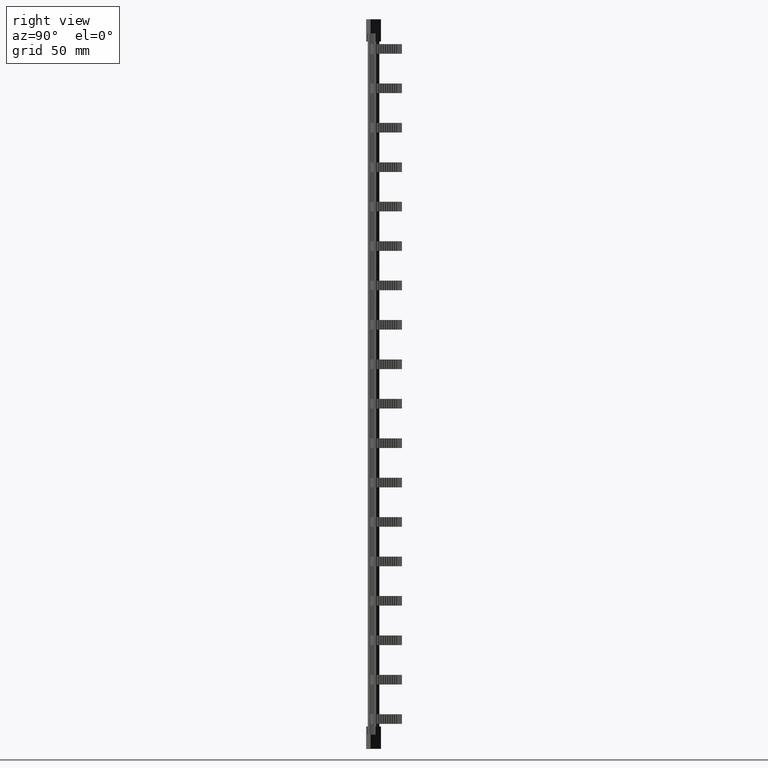
[diagram: clean part render]
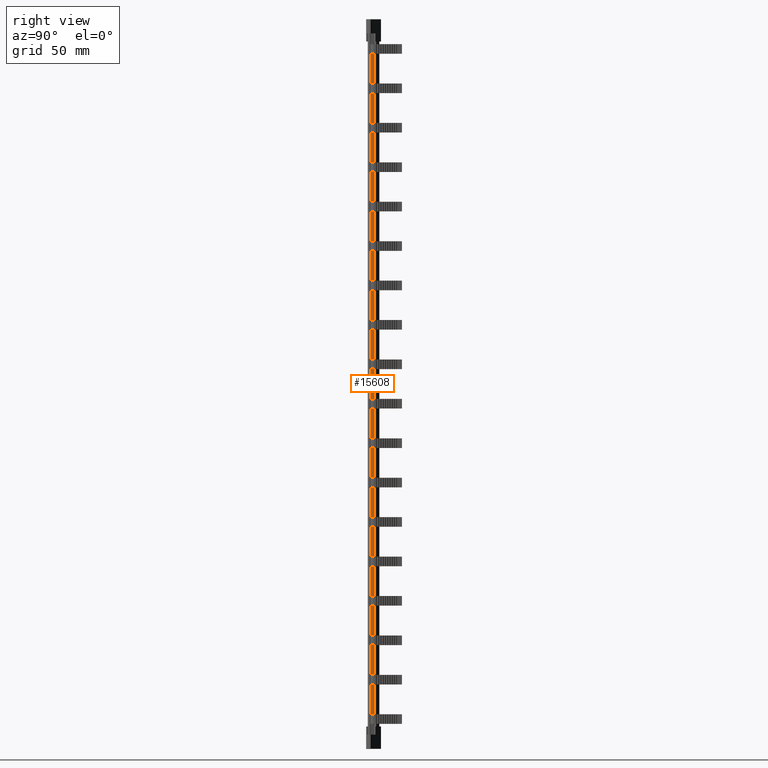
[diagram: same view with one face highlighted and labeled with its STEP entity id]
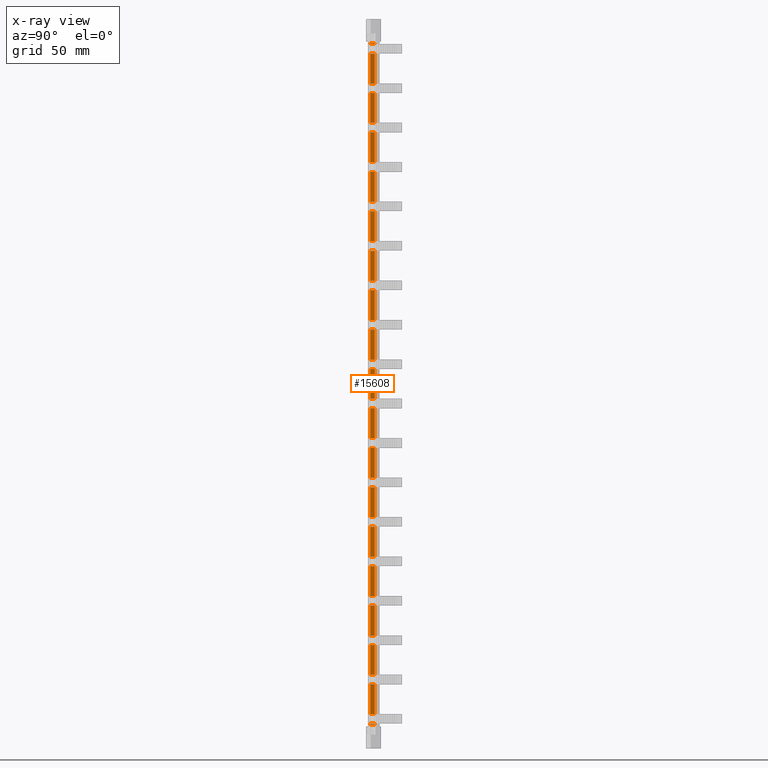
[diagram: x-ray of the same camera — body ghosted, the highlighted face saturated]
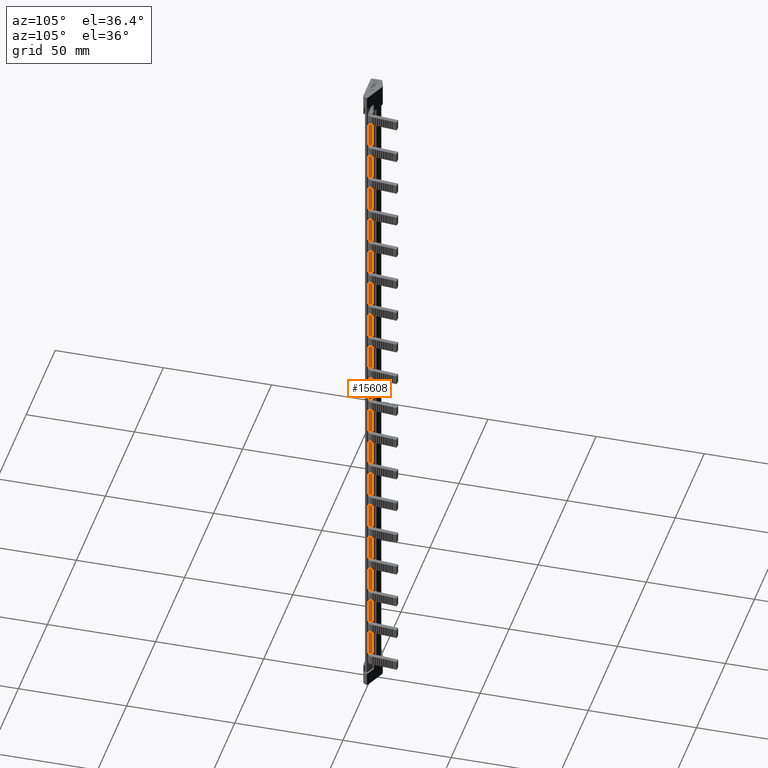
[diagram: same view with one face highlighted and labeled with its STEP entity id]
A machine part, right view. The second image highlights one B-rep face of the part: STEP entity #15608.
The next image is the same camera in x-ray: the body ghosted, the highlighted face saturated — about 0% of this face is hidden behind the body in this view.
A second angle (auxiliary view) of the same face is appended — the face is thin or edge-on in the first view.
In plain terms, the highlighted planar face has unit normal (-1, -0, 0).
Its self-contained STEP definition (entity closure, byte-faithful):
#67 = EDGE_CURVE ( 'NONE', #26734, #26753, #20892, .T. ) ;
#75 = EDGE_CURVE ( 'NONE', #26822, #26754, #20909, .T. ) ;
#78 = EDGE_CURVE ( 'NONE', #26643, #26561, #20969, .T. ) ;
#80 = EDGE_CURVE ( 'NONE', #26582, #26612, #20935, .T. ) ;
#83 = EDGE_CURVE ( 'NONE', #26652, #26707, #20945, .T. ) ;
#85 = EDGE_CURVE ( 'NONE', #26644, #26683, #20960, .T. ) ;
#90 = EDGE_CURVE ( 'NONE', #26607, #26608, #21036, .T. ) ;
#109 = EDGE_CURVE ( 'NONE', #26635, #26820, #21210, .T. ) ;
#117 = EDGE_CURVE ( 'NONE', #26641, #26600, #21331, .T. ) ;
#128 = EDGE_CURVE ( 'NONE', #26646, #26647, #21336, .T. ) ;
#319 = EDGE_CURVE ( 'NONE', #26607, #26613, #19483, .T. ) ;
#320 = EDGE_CURVE ( 'NONE', #26635, #26583, #19460, .T. ) ;
#324 = EDGE_CURVE ( 'NONE', #26583, #26651, #19476, .T. ) ;
#353 = EDGE_CURVE ( 'NONE', #26613, #26640, #19568, .T. ) ;
#365 = EDGE_CURVE ( 'NONE', #26624, #26628, #19628, .T. ) ;
#379 = EDGE_CURVE ( 'NONE', #26628, #26608, #19674, .T. ) ;
#386 = EDGE_CURVE ( 'NONE', #26640, #26600, #19645, .T. ) ;
#389 = EDGE_CURVE ( 'NONE', #26636, #26674, #19635, .T. ) ;
#392 = EDGE_CURVE ( 'NONE', #26693, #26708, #19695, .T. ) ;
#394 = EDGE_CURVE ( 'NONE', #26644, #26621, #19696, .T. ) ;
#395 = EDGE_CURVE ( 'NONE', #26619, #26668, #19719, .T. ) ;
#396 = EDGE_CURVE ( 'NONE', #26641, #26610, #19706, .T. ) ;
#418 = EDGE_CURVE ( 'NONE', #26582, #26624, #19753, .T. ) ;
#421 = EDGE_CURVE ( 'NONE', #26651, #26612, #19793, .T. ) ;
#428 = EDGE_CURVE ( 'NONE', #26653, #26699, #19804, .T. ) ;
#429 = EDGE_CURVE ( 'NONE', #26691, #26561, #19781, .T. ) ;
#430 = EDGE_CURVE ( 'NONE', #26643, #26673, #19777, .T. ) ;
#432 = EDGE_CURVE ( 'NONE', #26706, #26653, #19778, .T. ) ;
#433 = EDGE_CURVE ( 'NONE', #26681, #26647, #19771, .T. ) ;
#435 = EDGE_CURVE ( 'NONE', #26708, #26707, #19800, .T. ) ;
#436 = EDGE_CURVE ( 'NONE', #26673, #26681, #19820, .T. ) ;
#445 = EDGE_CURVE ( 'NONE', #26698, #26614, #19829, .T. ) ;
#446 = EDGE_CURVE ( 'NONE', #26697, #26671, #19855, .T. ) ;
#447 = EDGE_CURVE ( 'NONE', #26675, #26623, #19848, .T. ) ;
#449 = EDGE_CURVE ( 'NONE', #26645, #26619, #19819, .T. ) ;
#450 = EDGE_CURVE ( 'NONE', #26684, #26697, #19847, .T. ) ;
#454 = EDGE_CURVE ( 'NONE', #26646, #26693, #19899, .T. ) ;
#461 = EDGE_CURVE ( 'NONE', #26662, #26620, #19895, .T. ) ;
#463 = EDGE_CURVE ( 'NONE', #26678, #26742, #19861, .T. ) ;
#464 = EDGE_CURVE ( 'NONE', #26674, #26683, #19864, .T. ) ;
#475 = EDGE_CURVE ( 'NONE', #26705, #26679, #19940, .T. ) ;
#476 = EDGE_CURVE ( 'NONE', #26621, #26662, #19904, .T. ) ;
#479 = EDGE_CURVE ( 'NONE', #26685, #26597, #19905, .T. ) ;
#485 = EDGE_CURVE ( 'NONE', #26615, #26645, #19948, .T. ) ;
#487 = EDGE_CURVE ( 'NONE', #26652, #26636, #19956, .T. ) ;
#498 = EDGE_CURVE ( 'NONE', #26666, #26716, #20016, .T. ) ;
#500 = EDGE_CURVE ( 'NONE', #26629, #26666, #20026, .T. ) ;
#502 = EDGE_CURVE ( 'NONE', #26733, #26717, #20025, .T. ) ;
#505 = EDGE_CURVE ( 'NONE', #26610, #26691, #19994, .T. ) ;
#510 = EDGE_CURVE ( 'NONE', #26699, #26677, #4278, .T. ) ;
#516 = EDGE_CURVE ( 'NONE', #26614, #26711, #4263, .T. ) ;
#531 = EDGE_CURVE ( 'NONE', #26757, #26760, #4323, .T. ) ;
#534 = EDGE_CURVE ( 'NONE', #26735, #26669, #4284, .T. ) ;
#539 = EDGE_CURVE ( 'NONE', #26664, #26678, #4348, .T. ) ;
#541 = EDGE_CURVE ( 'NONE', #26623, #26685, #4339, .T. ) ;
#543 = EDGE_CURVE ( 'NONE', #26671, #26682, #4341, .T. ) ;
#545 = EDGE_CURVE ( 'NONE', #26763, #26757, #4357, .T. ) ;
#554 = EDGE_CURVE ( 'NONE', #26716, #26694, #3285, .T. ) ;
#562 = EDGE_CURVE ( 'NONE', #26724, #26763, #3353, .T. ) ;
#566 = EDGE_CURVE ( 'NONE', #26717, #26705, #3354, .T. ) ;
#569 = EDGE_CURVE ( 'NONE', #26639, #26698, #3370, .T. ) ;
#571 = EDGE_CURVE ( 'NONE', #26742, #26745, #3386, .T. ) ;
#575 = EDGE_CURVE ( 'NONE', #26669, #26663, #3401, .T. ) ;
#593 = EDGE_CURVE ( 'NONE', #26663, #26754, #3479, .T. ) ;
#637 = EDGE_CURVE ( 'NONE', #26735, #26760, #3653, .T. ) ;
#648 = EDGE_CURVE ( 'NONE', #26675, #26694, #3650, .T. ) ;
#651 = EDGE_CURVE ( 'NONE', #26615, #26620, #3638, .T. ) ;
#661 = EDGE_CURVE ( 'NONE', #26684, #26677, #3718, .T. ) ;
#668 = EDGE_CURVE ( 'NONE', #26706, #26668, #3746, .T. ) ;
#680 = EDGE_CURVE ( 'NONE', #26734, #26820, #3774, .T. ) ;
#681 = EDGE_CURVE ( 'NONE', #26822, #26753, #3769, .T. ) ;
#682 = EDGE_CURVE ( 'NONE', #26724, #26679, #3787, .T. ) ;
#683 = EDGE_CURVE ( 'NONE', #26664, #26711, #3804, .T. ) ;
#684 = EDGE_CURVE ( 'NONE', #26639, #26597, #3795, .T. ) ;
#686 = EDGE_CURVE ( 'NONE', #26629, #26682, #3846, .T. ) ;
#695 = EDGE_CURVE ( 'NONE', #26733, #26745, #3832, .T. ) ;
#1062 = VECTOR ( 'NONE', #3695, 1000.000000000000000 ) ;
#1075 = VECTOR ( 'NONE', #3699, 1000.000000000000000 ) ;
#1080 = VECTOR ( 'NONE', #3799, 1000.000000000000000 ) ;
#1102 = VECTOR ( 'NONE', #3791, 1000.000000000000000 ) ;
#1106 = VECTOR ( 'NONE', #3785, 1000.000000000000000 ) ;
#1107 = VECTOR ( 'NONE', #3755, 1000.000000000000000 ) ;
#1109 = VECTOR ( 'NONE', #3784, 1000.000000000000000 ) ;
#1110 = VECTOR ( 'NONE', #3747, 1000.000000000000000 ) ;
#1112 = VECTOR ( 'NONE', #3796, 1000.000000000000000 ) ;
#1115 = VECTOR ( 'NONE', #3828, 1000.000000000000000 ) ;
#1176 = VECTOR ( 'NONE', #20941, 1000.000000000000000 ) ;
#1177 = VECTOR ( 'NONE', #20973, 1000.000000000000000 ) ;
#1181 = VECTOR ( 'NONE', #20942, 1000.000000000000000 ) ;
#1193 = VECTOR ( 'NONE', #21078, 1000.000000000000000 ) ;
#1201 = VECTOR ( 'NONE', #20912, 1000.000000000000000 ) ;
#1203 = VECTOR ( 'NONE', #20936, 1000.000000000000000 ) ;
#1204 = VECTOR ( 'NONE', #21114, 1000.000000000000000 ) ;
#1229 = VECTOR ( 'NONE', #21219, 1000.000000000000000 ) ;
#1239 = VECTOR ( 'NONE', #21272, 1000.000000000000000 ) ;
#1255 = VECTOR ( 'NONE', #21354, 1000.000000000000000 ) ;
#1380 = VECTOR ( 'NONE', #3843, 1000.000000000000000 ) ;
#1442 = VECTOR ( 'NONE', #19461, 1000.000000000000000 ) ;
#1480 = VECTOR ( 'NONE', #19449, 1000.000000000000000 ) ;
#1483 = VECTOR ( 'NONE', #19488, 1000.000000000000000 ) ;
#1518 = VECTOR ( 'NONE', #19652, 1000.000000000000000 ) ;
#1534 = VECTOR ( 'NONE', #19680, 1000.000000000000000 ) ;
#1535 = VECTOR ( 'NONE', #19647, 1000.000000000000000 ) ;
#1536 = VECTOR ( 'NONE', #19714, 1000.000000000000000 ) ;
#1537 = VECTOR ( 'NONE', #19704, 1000.000000000000000 ) ;
#1541 = VECTOR ( 'NONE', #19684, 1000.000000000000000 ) ;
#1548 = VECTOR ( 'NONE', #19588, 1000.000000000000000 ) ;
#1555 = VECTOR ( 'NONE', #19545, 1000.000000000000000 ) ;
#1561 = VECTOR ( 'NONE', #19646, 1000.000000000000000 ) ;
#1572 = VECTOR ( 'NONE', #19794, 1000.000000000000000 ) ;
#1585 = VECTOR ( 'NONE', #19770, 1000.000000000000000 ) ;
#1587 = VECTOR ( 'NONE', #19853, 1000.000000000000000 ) ;
#1599 = VECTOR ( 'NONE', #19755, 1000.000000000000000 ) ;
#1602 = VECTOR ( 'NONE', #19828, 1000.000000000000000 ) ;
#1607 = VECTOR ( 'NONE', #19813, 1000.000000000000000 ) ;
#1612 = VECTOR ( 'NONE', #19787, 1000.000000000000000 ) ;
#1615 = VECTOR ( 'NONE', #19801, 1000.000000000000000 ) ;
#1618 = VECTOR ( 'NONE', #19810, 1000.000000000000000 ) ;
#1627 = VECTOR ( 'NONE', #19818, 1000.000000000000000 ) ;
#1630 = VECTOR ( 'NONE', #19935, 1000.000000000000000 ) ;
#1631 = VECTOR ( 'NONE', #19926, 1000.000000000000000 ) ;
#1633 = VECTOR ( 'NONE', #19842, 1000.000000000000000 ) ;
#1638 = VECTOR ( 'NONE', #19852, 1000.000000000000000 ) ;
#1645 = VECTOR ( 'NONE', #19833, 1000.000000000000000 ) ;
#1662 = VECTOR ( 'NONE', #19952, 1000.000000000000000 ) ;
#1668 = VECTOR ( 'NONE', #19896, 1000.000000000000000 ) ;
#1670 = VECTOR ( 'NONE', #19946, 1000.000000000000000 ) ;
#1671 = VECTOR ( 'NONE', #19980, 1000.000000000000000 ) ;
#1684 = VECTOR ( 'NONE', #19910, 1000.000000000000000 ) ;
#1686 = VECTOR ( 'NONE', #19890, 1000.000000000000000 ) ;
#1689 = VECTOR ( 'NONE', #19870, 1000.000000000000000 ) ;
#1691 = VECTOR ( 'NONE', #19884, 1000.000000000000000 ) ;
#1693 = VECTOR ( 'NONE', #19996, 1000.000000000000000 ) ;
#1704 = VECTOR ( 'NONE', #20027, 1000.000000000000000 ) ;
#1725 = VECTOR ( 'NONE', #4268, 1000.000000000000000 ) ;
#1726 = VECTOR ( 'NONE', #20005, 1000.000000000000000 ) ;
#1739 = VECTOR ( 'NONE', #4256, 1000.000000000000000 ) ;
#1744 = VECTOR ( 'NONE', #20022, 1000.000000000000000 ) ;
#1764 = VECTOR ( 'NONE', #4363, 1000.000000000000000 ) ;
#1773 = VECTOR ( 'NONE', #3408, 1000.000000000000000 ) ;
#1794 = VECTOR ( 'NONE', #4292, 1000.000000000000000 ) ;
#1796 = VECTOR ( 'NONE', #4360, 1000.000000000000000 ) ;
#1798 = VECTOR ( 'NONE', #4346, 1000.000000000000000 ) ;
#1801 = VECTOR ( 'NONE', #3358, 1000.000000000000000 ) ;
#1803 = VECTOR ( 'NONE', #3343, 1000.000000000000000 ) ;
#1804 = VECTOR ( 'NONE', #3400, 1000.000000000000000 ) ;
#1805 = VECTOR ( 'NONE', #3390, 1000.000000000000000 ) ;
#1807 = VECTOR ( 'NONE', #4310, 1000.000000000000000 ) ;
#1810 = VECTOR ( 'NONE', #4343, 1000.000000000000000 ) ;
#1811 = VECTOR ( 'NONE', #3295, 1000.000000000000000 ) ;
#1824 = VECTOR ( 'NONE', #3488, 1000.000000000000000 ) ;
#1861 = VECTOR ( 'NONE', #3619, 1000.000000000000000 ) ;
#3278 = CARTESIAN_POINT ( 'NONE',  ( 10.37430495582721900, 3.092390552839102500, 103.1500000000000200 ) ) ;
#3285 = LINE ( 'NONE', #3278, #1811 ) ;
#3295 = DIRECTION ( 'NONE',  ( 1.140583545597481100E-013, -1.000000000000000000, 0.0000000000000000000 ) ) ;
#3330 = CARTESIAN_POINT ( 'NONE',  ( 10.37430495582721900, 3.092390552839102500, 186.8499999999999900 ) ) ;
#3338 = CARTESIAN_POINT ( 'NONE',  ( 10.37430495582721900, 3.092390552839102500, -105.9240927571827100 ) ) ;
#3343 = DIRECTION ( 'NONE',  ( 0.0000000000000000000, 0.0000000000000000000, 1.000000000000000000 ) ) ;
#3353 = LINE ( 'NONE', #3330, #1801 ) ;
#3354 = LINE ( 'NONE', #3338, #1803 ) ;
#3358 = DIRECTION ( 'NONE',  ( -1.140583545597481100E-013, 1.000000000000000000, -0.0000000000000000000 ) ) ;
#3370 = LINE ( 'NONE', #3384, #1804 ) ;
#3377 = CARTESIAN_POINT ( 'NONE',  ( 10.37430495582721900, 3.092390552839102500, 155.9500000000000700 ) ) ;
#3383 = CARTESIAN_POINT ( 'NONE',  ( 10.37430495582721900, 3.092390552839102500, -105.9240927571827100 ) ) ;
#3384 = CARTESIAN_POINT ( 'NONE',  ( 10.37430495582721900, 3.092390552839102500, 134.0500000000000100 ) ) ;
#3386 = LINE ( 'NONE', #3377, #1805 ) ;
#3390 = DIRECTION ( 'NONE',  ( 1.140583545597481100E-013, -1.000000000000000000, 0.0000000000000000000 ) ) ;
#3400 = DIRECTION ( 'NONE',  ( -1.140583545597481100E-013, 1.000000000000000000, -0.0000000000000000000 ) ) ;
#3401 = LINE ( 'NONE', #3383, #1773 ) ;
#3408 = DIRECTION ( 'NONE',  ( 0.0000000000000000000, 0.0000000000000000000, 1.000000000000000000 ) ) ;
#3479 = LINE ( 'NONE', #3481, #1824 ) ;
#3481 = CARTESIAN_POINT ( 'NONE',  ( 10.37430495582721900, 3.092390552839102500, 208.7500000000000300 ) ) ;
#3488 = DIRECTION ( 'NONE',  ( 1.140583545597481100E-013, -1.000000000000000000, 0.0000000000000000000 ) ) ;
#3619 = DIRECTION ( 'NONE',  ( -0.0000000000000000000, -0.0000000000000000000, -1.000000000000000000 ) ) ;
#3638 = LINE ( 'NONE', #3705, #1075 ) ;
#3641 = CARTESIAN_POINT ( 'NONE',  ( 10.37430495582744600, 1.100000111734499500, -105.9240927571827100 ) ) ;
#3650 = LINE ( 'NONE', #3672, #1062 ) ;
#3653 = LINE ( 'NONE', #3641, #1861 ) ;
#3672 = CARTESIAN_POINT ( 'NONE',  ( 10.37430495582744600, 1.100000111734499500, -105.9240927571827100 ) ) ;
#3695 = DIRECTION ( 'NONE',  ( -0.0000000000000000000, -0.0000000000000000000, -1.000000000000000000 ) ) ;
#3699 = DIRECTION ( 'NONE',  ( -0.0000000000000000000, -0.0000000000000000000, -1.000000000000000000 ) ) ;
#3705 = CARTESIAN_POINT ( 'NONE',  ( 10.37430495582766800, 1.100000111734499500, -105.9240927571827100 ) ) ;
#3718 = LINE ( 'NONE', #3736, #1110 ) ;
#3736 = CARTESIAN_POINT ( 'NONE',  ( 10.37430495582766800, 1.100000111734499500, -105.9240927571827100 ) ) ;
#3746 = LINE ( 'NONE', #3754, #1107 ) ;
#3747 = DIRECTION ( 'NONE',  ( -0.0000000000000000000, -0.0000000000000000000, -1.000000000000000000 ) ) ;
#3754 = CARTESIAN_POINT ( 'NONE',  ( 10.37430495582766800, 1.100000111734499500, -105.9240927571827100 ) ) ;
#3755 = DIRECTION ( 'NONE',  ( -0.0000000000000000000, -0.0000000000000000000, -1.000000000000000000 ) ) ;
#3769 = LINE ( 'NONE', #3801, #1080 ) ;
#3770 = CARTESIAN_POINT ( 'NONE',  ( 10.37430495582744600, 1.100000111734499500, -105.9240927571827100 ) ) ;
#3774 = LINE ( 'NONE', #3782, #1109 ) ;
#3782 = CARTESIAN_POINT ( 'NONE',  ( 10.37430495582721900, 3.092390552839102500, -95.00000000000001400 ) ) ;
#3784 = DIRECTION ( 'NONE',  ( 1.140583545597481100E-013, -1.000000000000000000, 0.0000000000000000000 ) ) ;
#3785 = DIRECTION ( 'NONE',  ( -0.0000000000000000000, -0.0000000000000000000, -1.000000000000000000 ) ) ;
#3787 = LINE ( 'NONE', #3800, #1102 ) ;
#3791 = DIRECTION ( 'NONE',  ( -0.0000000000000000000, -0.0000000000000000000, -1.000000000000000000 ) ) ;
#3795 = LINE ( 'NONE', #3808, #1112 ) ;
#3796 = DIRECTION ( 'NONE',  ( -0.0000000000000000000, -0.0000000000000000000, -1.000000000000000000 ) ) ;
#3799 = DIRECTION ( 'NONE',  ( -1.140583545597481100E-013, 1.000000000000000000, -0.0000000000000000000 ) ) ;
#3800 = CARTESIAN_POINT ( 'NONE',  ( 10.37430495582744600, 1.100000111734499500, -105.9240927571827100 ) ) ;
#3801 = CARTESIAN_POINT ( 'NONE',  ( 10.37430495582721900, 3.092390552839102500, 209.0000000000000000 ) ) ;
#3804 = LINE ( 'NONE', #3770, #1106 ) ;
#3808 = CARTESIAN_POINT ( 'NONE',  ( 10.37430495582744600, 1.100000111734499500, -105.9240927571827100 ) ) ;
#3822 = CARTESIAN_POINT ( 'NONE',  ( 10.37430495582744600, 1.100000111734499500, -105.9240927571827100 ) ) ;
#3824 = CARTESIAN_POINT ( 'NONE',  ( 10.37430495582744600, 1.100000111734499500, -105.9240927571827100 ) ) ;
#3828 = DIRECTION ( 'NONE',  ( -0.0000000000000000000, -0.0000000000000000000, -1.000000000000000000 ) ) ;
#3832 = LINE ( 'NONE', #3824, #1380 ) ;
#3843 = DIRECTION ( 'NONE',  ( -0.0000000000000000000, -0.0000000000000000000, -1.000000000000000000 ) ) ;
#3846 = LINE ( 'NONE', #3822, #1115 ) ;
#4249 = CARTESIAN_POINT ( 'NONE',  ( 10.37430495582721900, 3.092390552839102500, 67.95000000000003100 ) ) ;
#4256 = DIRECTION ( 'NONE',  ( 1.140583545597481100E-013, -1.000000000000000000, 0.0000000000000000000 ) ) ;
#4263 = LINE ( 'NONE', #4274, #1725 ) ;
#4268 = DIRECTION ( 'NONE',  ( 1.140583545597481100E-013, -1.000000000000000000, 0.0000000000000000000 ) ) ;
#4274 = CARTESIAN_POINT ( 'NONE',  ( 10.37430495582721900, 3.092390552839102500, 138.3500000000000200 ) ) ;
#4278 = LINE ( 'NONE', #4249, #1739 ) ;
#4284 = LINE ( 'NONE', #4314, #1794 ) ;
#4292 = DIRECTION ( 'NONE',  ( -1.140583545597481100E-013, 1.000000000000000000, -0.0000000000000000000 ) ) ;
#4310 = DIRECTION ( 'NONE',  ( 1.140583545597481100E-013, -1.000000000000000000, 0.0000000000000000000 ) ) ;
#4314 = CARTESIAN_POINT ( 'NONE',  ( 10.37430495582721900, 3.092390552839102500, 204.4500000000000500 ) ) ;
#4323 = LINE ( 'NONE', #4324, #1807 ) ;
#4324 = CARTESIAN_POINT ( 'NONE',  ( 10.37430495582721900, 3.092390552839102500, 191.1500000000000100 ) ) ;
#4330 = CARTESIAN_POINT ( 'NONE',  ( 10.37430495582721900, 3.092390552839102500, -105.9240927571827100 ) ) ;
#4339 = LINE ( 'NONE', #4340, #1798 ) ;
#4340 = CARTESIAN_POINT ( 'NONE',  ( 10.37430495582721900, 3.092390552839102500, -105.9240927571827100 ) ) ;
#4341 = LINE ( 'NONE', #4366, #1796 ) ;
#4343 = DIRECTION ( 'NONE',  ( 0.0000000000000000000, 0.0000000000000000000, 1.000000000000000000 ) ) ;
#4346 = DIRECTION ( 'NONE',  ( 0.0000000000000000000, 0.0000000000000000000, 1.000000000000000000 ) ) ;
#4348 = LINE ( 'NONE', #4350, #1764 ) ;
#4350 = CARTESIAN_POINT ( 'NONE',  ( 10.37430495582721900, 3.092390552839102500, 151.6499999999999800 ) ) ;
#4357 = LINE ( 'NONE', #4330, #1810 ) ;
#4360 = DIRECTION ( 'NONE',  ( 1.140583545597481100E-013, -1.000000000000000000, 0.0000000000000000000 ) ) ;
#4363 = DIRECTION ( 'NONE',  ( -1.140583545597481100E-013, 1.000000000000000000, -0.0000000000000000000 ) ) ;
#4366 = CARTESIAN_POINT ( 'NONE',  ( 10.37430495582721900, 3.092390552839102500, 85.55000000000001100 ) ) ;
#6517 = CARTESIAN_POINT ( 'NONE',  ( 10.37430495582744400, 1.100000111734499500, -59.54999999999999000 ) ) ;
#6518 = CARTESIAN_POINT ( 'NONE',  ( 10.37430495582744400, 1.100000111734499500, -72.84999999999998000 ) ) ;
#6521 = CARTESIAN_POINT ( 'NONE',  ( 10.37430495582721900, 3.092390552839102500, -94.75000000000000000 ) ) ;
#6535 = CARTESIAN_POINT ( 'NONE',  ( 10.37430495582744400, 1.100000111734499500, -37.64999999999998400 ) ) ;
#6551 = CARTESIAN_POINT ( 'NONE',  ( 10.37430495582737000, 1.100000111734499500, 120.7499999999999900 ) ) ;
#6555 = CARTESIAN_POINT ( 'NONE',  ( 10.37430495582744400, 1.100000111734499500, -55.24999999999998600 ) ) ;
#6576 = CARTESIAN_POINT ( 'NONE',  ( 10.37430495582744400, 1.100000111734499500, -77.14999999999999100 ) ) ;
#6579 = CARTESIAN_POINT ( 'NONE',  ( 10.37430495582744400, 1.100000111734499500, -20.04999999999997900 ) ) ;
#6584 = CARTESIAN_POINT ( 'NONE',  ( 10.37430495582721900, 3.092390552839102500, 32.75000000000000000 ) ) ;
#6585 = CARTESIAN_POINT ( 'NONE',  ( 10.37430495582737000, 1.100000111734499500, 134.0500000000000100 ) ) ;
#6586 = CARTESIAN_POINT ( 'NONE',  ( 10.37430495582721900, 3.092390552839102500, 208.7500000000000600 ) ) ;
#6587 = CARTESIAN_POINT ( 'NONE',  ( 10.37430495582737000, 1.100000111734499500, 151.6499999999999800 ) ) ;
#6589 = CARTESIAN_POINT ( 'NONE',  ( 10.37430495582721900, 3.092390552839102500, 98.85000000000002300 ) ) ;
#6591 = CARTESIAN_POINT ( 'NONE',  ( 10.37430495582744400, 1.100000111734499500, -41.94999999999998900 ) ) ;
#6592 = CARTESIAN_POINT ( 'NONE',  ( 10.37430495582721900, 3.092390552839102500, -41.94999999999998900 ) ) ;
#6593 = CARTESIAN_POINT ( 'NONE',  ( 10.37430495582737000, 1.100000111734499500, 98.85000000000003700 ) ) ;
#6594 = CARTESIAN_POINT ( 'NONE',  ( 10.37430495582744400, 1.100000111734499500, -90.44999999999998900 ) ) ;
#6595 = CARTESIAN_POINT ( 'NONE',  ( 10.37430495582721900, 3.092390552839102500, -77.14999999999999100 ) ) ;
#6596 = CARTESIAN_POINT ( 'NONE',  ( 10.37430495582744400, 1.100000111734499500, 28.45000000000000300 ) ) ;
#6600 = CARTESIAN_POINT ( 'NONE',  ( 10.37430495582721900, 3.092390552839102500, -55.24999999999999300 ) ) ;
#6601 = CARTESIAN_POINT ( 'NONE',  ( 10.37430495582721900, 3.092390552839102500, 46.05000000000000400 ) ) ;
#6602 = CARTESIAN_POINT ( 'NONE',  ( 10.37430495582744400, 1.100000111734499500, 10.84999999999999800 ) ) ;
#6610 = CARTESIAN_POINT ( 'NONE',  ( 10.37430495582744400, 1.100000111734499500, 50.35000000000001600 ) ) ;
#6612 = CARTESIAN_POINT ( 'NONE',  ( 10.37430495582721900, 3.092390552839102500, 204.4500000000000200 ) ) ;
#6613 = CARTESIAN_POINT ( 'NONE',  ( 10.37430495582721900, 3.092390552839102500, 28.45000000000000300 ) ) ;
#6614 = CARTESIAN_POINT ( 'NONE',  ( 10.37430495582744400, 1.100000111734499500, -94.75000000000000000 ) ) ;
#6616 = CARTESIAN_POINT ( 'NONE',  ( 10.37430495582721900, 3.092390552839102500, 85.55000000000001100 ) ) ;
#6619 = CARTESIAN_POINT ( 'NONE',  ( 10.37430495582721900, 3.092390552839102500, -72.84999999999999400 ) ) ;
#6620 = CARTESIAN_POINT ( 'NONE',  ( 10.37430495582721900, 3.092390552839102500, 138.3500000000000200 ) ) ;
#6623 = CARTESIAN_POINT ( 'NONE',  ( 10.37430495582744400, 1.100000111734499500, -24.34999999999998400 ) ) ;
#6625 = CARTESIAN_POINT ( 'NONE',  ( 10.37430495582721900, 3.092390552839102500, 116.4500000000000300 ) ) ;
#6628 = CARTESIAN_POINT ( 'NONE',  ( 10.37430495582721900, 3.092390552839102500, 50.35000000000000900 ) ) ;
#6630 = CARTESIAN_POINT ( 'NONE',  ( 10.37430495582744400, 1.100000111734499500, 46.05000000000000400 ) ) ;
#6632 = CARTESIAN_POINT ( 'NONE',  ( 10.37430495582721900, 3.092390552839102500, -59.54999999999999000 ) ) ;
#6633 = CARTESIAN_POINT ( 'NONE',  ( 10.37430495582721900, 3.092390552839102500, 10.84999999999999800 ) ) ;
#6634 = CARTESIAN_POINT ( 'NONE',  ( 10.37430495582744400, 1.100000111734499500, 32.75000000000000700 ) ) ;
#6635 = CARTESIAN_POINT ( 'NONE',  ( 10.37430495582744400, 1.100000111734499500, -6.749999999999978700 ) ) ;
#6638 = CARTESIAN_POINT ( 'NONE',  ( 10.37430495582721900, 3.092390552839102500, -90.45000000000000300 ) ) ;
#6639 = CARTESIAN_POINT ( 'NONE',  ( 10.37430495582721900, 3.092390552839102500, 63.65000000000001300 ) ) ;
#6641 = CARTESIAN_POINT ( 'NONE',  ( 10.37430495582721900, 3.092390552839102500, 81.25000000000001400 ) ) ;
#6642 = CARTESIAN_POINT ( 'NONE',  ( 10.37430495582721700, 3.100000585347644200, -95.00000000000001400 ) ) ;
#6643 = CARTESIAN_POINT ( 'NONE',  ( 10.37430495582737000, 1.100000111734499500, 204.4500000000000200 ) ) ;
#6647 = CARTESIAN_POINT ( 'NONE',  ( 10.37430495582721900, 3.092390552839102500, 151.6500000000000100 ) ) ;
#6648 = CARTESIAN_POINT ( 'NONE',  ( 10.37430495582737000, 1.100000111734499500, 103.1500000000000200 ) ) ;
#6650 = CARTESIAN_POINT ( 'NONE',  ( 10.37430495582721900, 3.092390552839102500, 67.95000000000003100 ) ) ;
#6651 = CARTESIAN_POINT ( 'NONE',  ( 10.37430495582744400, 1.100000111734499500, 15.15000000000000200 ) ) ;
#6653 = CARTESIAN_POINT ( 'NONE',  ( 10.37430495582737000, 1.100000111734499500, 173.5500000000000100 ) ) ;
#6654 = CARTESIAN_POINT ( 'NONE',  ( 10.37430495582721900, 3.092390552839102500, -2.449999999999979700 ) ) ;
#6656 = CARTESIAN_POINT ( 'NONE',  ( 10.37430495582737000, 1.100000111734499500, 138.3500000000000200 ) ) ;
#6657 = CARTESIAN_POINT ( 'NONE',  ( 10.37430495582721900, 3.092390552839102500, 120.7500000000000000 ) ) ;
#6663 = CARTESIAN_POINT ( 'NONE',  ( 10.37430495582721900, 3.092390552839102500, 169.2500000000000000 ) ) ;
#6669 = CARTESIAN_POINT ( 'NONE',  ( 10.37430495582744400, 1.100000111734499500, 67.95000000000003100 ) ) ;
#6670 = CARTESIAN_POINT ( 'NONE',  ( 10.37430495582721900, 3.092390552839102500, -24.34999999999998400 ) ) ;
#6671 = CARTESIAN_POINT ( 'NONE',  ( 10.37430495582721900, 3.092390552839102500, -6.749999999999978700 ) ) ;
#6675 = CARTESIAN_POINT ( 'NONE',  ( 10.37430495582721900, 3.092390552839102500, 15.14999999999999700 ) ) ;
#6678 = CARTESIAN_POINT ( 'NONE',  ( 10.37430495582721900, 3.092390552839102500, 103.1500000000000200 ) ) ;
#6681 = CARTESIAN_POINT ( 'NONE',  ( 10.37430495582737000, 1.100000111734499500, 169.2500000000000000 ) ) ;
#6682 = CARTESIAN_POINT ( 'NONE',  ( 10.37430495582744400, 1.100000111734499500, -2.449999999999979700 ) ) ;
#6685 = CARTESIAN_POINT ( 'NONE',  ( 10.37430495582737000, 1.100000111734499500, 186.8499999999999900 ) ) ;
#6686 = CARTESIAN_POINT ( 'NONE',  ( 10.37430495582744400, 1.100000111734499500, 63.65000000000001300 ) ) ;
#6689 = CARTESIAN_POINT ( 'NONE',  ( 10.37430495582721900, 3.092390552839102500, -20.04999999999998300 ) ) ;
#6692 = CARTESIAN_POINT ( 'NONE',  ( 10.37430495582721900, 3.092390552839102500, 134.0500000000000100 ) ) ;
#6697 = CARTESIAN_POINT ( 'NONE',  ( 10.37430495582737000, 1.100000111734499500, 116.4500000000000200 ) ) ;
#6699 = CARTESIAN_POINT ( 'NONE',  ( 10.37430495582737000, 1.100000111734499500, 85.55000000000001100 ) ) ;
#6700 = CARTESIAN_POINT ( 'NONE',  ( 10.37430495582721900, 3.092390552839102500, -37.64999999999999100 ) ) ;
#6702 = CARTESIAN_POINT ( 'NONE',  ( 10.37430495582721900, 3.092390552839102500, 173.5500000000000100 ) ) ;
#6703 = CARTESIAN_POINT ( 'NONE',  ( 10.37430495582744400, 1.100000111734499500, 81.25000000000001400 ) ) ;
#6708 = CARTESIAN_POINT ( 'NONE',  ( 10.37430495582721900, 3.092390552839102500, 186.8500000000000200 ) ) ;
#6713 = CARTESIAN_POINT ( 'NONE',  ( 10.37430495582721900, 3.092390552839102500, 155.9500000000000700 ) ) ;
#6717 = CARTESIAN_POINT ( 'NONE',  ( 10.37430495582737000, 1.100000111734499500, 191.1500000000000100 ) ) ;
#6722 = CARTESIAN_POINT ( 'NONE',  ( 10.37430495582722900, 3.100000585347644200, 209.0000000000000000 ) ) ;
#6740 = CARTESIAN_POINT ( 'NONE',  ( 10.37430495582721900, 3.092390552839102500, 191.1500000000000100 ) ) ;
#6751 = CARTESIAN_POINT ( 'NONE',  ( 10.37430495582724700, 1.100000111734499500, 208.7500000000000300 ) ) ;
#6762 = CARTESIAN_POINT ( 'NONE',  ( 10.37430495582737000, 1.100000111734499500, 155.9500000000000700 ) ) ;
#6815 = CARTESIAN_POINT ( 'NONE',  ( 10.37430495582720100, 1.100000111734499500, 209.0000000000000000 ) ) ;
#6823 = CARTESIAN_POINT ( 'NONE',  ( 10.37430495582759300, 1.100000013578794000, -94.99999999999998600 ) ) ;
#7593 = ORIENTED_EDGE ( 'NONE', *, *, #695, .T. ) ;
#7595 = ORIENTED_EDGE ( 'NONE', *, *, #502, .F. ) ;
#7598 = ORIENTED_EDGE ( 'NONE', *, *, #571, .F. ) ;
#7599 = ORIENTED_EDGE ( 'NONE', *, *, #534, .F. ) ;
#7603 = ORIENTED_EDGE ( 'NONE', *, *, #545, .F. ) ;
#7607 = ORIENTED_EDGE ( 'NONE', *, *, #562, .F. ) ;
#7609 = ORIENTED_EDGE ( 'NONE', *, *, #637, .T. ) ;
#7614 = ORIENTED_EDGE ( 'NONE', *, *, #475, .F. ) ;
#7626 = ORIENTED_EDGE ( 'NONE', *, *, #575, .F. ) ;
#7636 = ORIENTED_EDGE ( 'NONE', *, *, #682, .T. ) ;
#7639 = ORIENTED_EDGE ( 'NONE', *, *, #531, .F. ) ;
#7648 = ORIENTED_EDGE ( 'NONE', *, *, #566, .F. ) ;
#8395 = ORIENTED_EDGE ( 'NONE', *, *, #668, .T. ) ;
#8411 = ORIENTED_EDGE ( 'NONE', *, *, #428, .F. ) ;
#8423 = ORIENTED_EDGE ( 'NONE', *, *, #510, .F. ) ;
#8424 = ORIENTED_EDGE ( 'NONE', *, *, #320, .F. ) ;
#8425 = ORIENTED_EDGE ( 'NONE', *, *, #487, .F. ) ;
#8426 = ORIENTED_EDGE ( 'NONE', *, *, #319, .F. ) ;
#8427 = ORIENTED_EDGE ( 'NONE', *, *, #67, .T. ) ;
#8428 = ORIENTED_EDGE ( 'NONE', *, *, #392, .F. ) ;
#8429 = ORIENTED_EDGE ( 'NONE', *, *, #83, .T. ) ;
#8430 = ORIENTED_EDGE ( 'NONE', *, *, #78, .T. ) ;
#8431 = ORIENTED_EDGE ( 'NONE', *, *, #395, .F. ) ;
#8432 = ORIENTED_EDGE ( 'NONE', *, *, #85, .T. ) ;
#8433 = ORIENTED_EDGE ( 'NONE', *, *, #543, .F. ) ;
#8434 = ORIENTED_EDGE ( 'NONE', *, *, #433, .F. ) ;
#8435 = ORIENTED_EDGE ( 'NONE', *, *, #128, .T. ) ;
#8436 = ORIENTED_EDGE ( 'NONE', *, *, #353, .F. ) ;
#8437 = ORIENTED_EDGE ( 'NONE', *, *, #90, .T. ) ;
#8438 = ORIENTED_EDGE ( 'NONE', *, *, #418, .F. ) ;
#8439 = ORIENTED_EDGE ( 'NONE', *, *, #686, .T. ) ;
#8440 = ORIENTED_EDGE ( 'NONE', *, *, #454, .F. ) ;
#8441 = ORIENTED_EDGE ( 'NONE', *, *, #396, .F. ) ;
#8443 = ORIENTED_EDGE ( 'NONE', *, *, #109, .T. ) ;
#8445 = ORIENTED_EDGE ( 'NONE', *, *, #435, .F. ) ;
#8446 = ORIENTED_EDGE ( 'NONE', *, *, #446, .F. ) ;
#8447 = ORIENTED_EDGE ( 'NONE', *, *, #117, .T. ) ;
#8448 = ORIENTED_EDGE ( 'NONE', *, *, #75, .T. ) ;
#8450 = ORIENTED_EDGE ( 'NONE', *, *, #651, .T. ) ;
#8451 = ORIENTED_EDGE ( 'NONE', *, *, #429, .F. ) ;
#8454 = ORIENTED_EDGE ( 'NONE', *, *, #432, .F. ) ;
#8456 = ORIENTED_EDGE ( 'NONE', *, *, #476, .F. ) ;
#8457 = ORIENTED_EDGE ( 'NONE', *, *, #365, .F. ) ;
#8458 = ORIENTED_EDGE ( 'NONE', *, *, #394, .F. ) ;
#8459 = ORIENTED_EDGE ( 'NONE', *, *, #430, .F. ) ;
#8460 = ORIENTED_EDGE ( 'NONE', *, *, #461, .F. ) ;
#8461 = ORIENTED_EDGE ( 'NONE', *, *, #485, .F. ) ;
#8462 = ORIENTED_EDGE ( 'NONE', *, *, #389, .F. ) ;
#8463 = ORIENTED_EDGE ( 'NONE', *, *, #421, .F. ) ;
#8464 = ORIENTED_EDGE ( 'NONE', *, *, #379, .F. ) ;
#8470 = ORIENTED_EDGE ( 'NONE', *, *, #593, .F. ) ;
#8471 = ORIENTED_EDGE ( 'NONE', *, *, #464, .F. ) ;
#8473 = ORIENTED_EDGE ( 'NONE', *, *, #80, .T. ) ;
#8475 = ORIENTED_EDGE ( 'NONE', *, *, #436, .F. ) ;
#8477 = ORIENTED_EDGE ( 'NONE', *, *, #661, .T. ) ;
#8478 = ORIENTED_EDGE ( 'NONE', *, *, #324, .F. ) ;
#8479 = ORIENTED_EDGE ( 'NONE', *, *, #505, .F. ) ;
#8481 = ORIENTED_EDGE ( 'NONE', *, *, #386, .F. ) ;
#8483 = ORIENTED_EDGE ( 'NONE', *, *, #450, .F. ) ;
#8485 = ORIENTED_EDGE ( 'NONE', *, *, #680, .F. ) ;
#8486 = ORIENTED_EDGE ( 'NONE', *, *, #449, .F. ) ;
#8487 = ORIENTED_EDGE ( 'NONE', *, *, #500, .F. ) ;
#8492 = ORIENTED_EDGE ( 'NONE', *, *, #463, .F. ) ;
#8495 = ORIENTED_EDGE ( 'NONE', *, *, #447, .F. ) ;
#8515 = ORIENTED_EDGE ( 'NONE', *, *, #681, .F. ) ;
#8519 = ORIENTED_EDGE ( 'NONE', *, *, #554, .F. ) ;
#8521 = ORIENTED_EDGE ( 'NONE', *, *, #498, .F. ) ;
#8524 = ORIENTED_EDGE ( 'NONE', *, *, #445, .F. ) ;
#8527 = ORIENTED_EDGE ( 'NONE', *, *, #569, .F. ) ;
#8528 = ORIENTED_EDGE ( 'NONE', *, *, #648, .T. ) ;
#8531 = ORIENTED_EDGE ( 'NONE', *, *, #541, .F. ) ;
#8536 = ORIENTED_EDGE ( 'NONE', *, *, #539, .F. ) ;
#8537 = ORIENTED_EDGE ( 'NONE', *, *, #683, .T. ) ;
#8538 = ORIENTED_EDGE ( 'NONE', *, *, #684, .T. ) ;
#8539 = ORIENTED_EDGE ( 'NONE', *, *, #479, .F. ) ;
#8540 = ORIENTED_EDGE ( 'NONE', *, *, #516, .F. ) ;
#14656 = FACE_OUTER_BOUND ( 'NONE', #28204, .T. ) ;
#14658 = DIRECTION ( 'NONE',  ( -1.000000000000000000, -1.140583545597481100E-013, 0.0000000000000000000 ) ) ;
#14680 = CARTESIAN_POINT ( 'NONE',  ( 10.37430495582721900, 3.092390552839102500, -105.9240927571827100 ) ) ;
#14682 = DIRECTION ( 'NONE',  ( 1.140583545597481100E-013, -1.000000000000000000, 0.0000000000000000000 ) ) ;
#14690 = PLANE ( 'NONE',  #25475 ) ;
#15608 = ADVANCED_FACE ( 'NONE', ( #14656 ), #14690, .F. ) ;
#19449 = DIRECTION ( 'NONE',  ( 0.0000000000000000000, 0.0000000000000000000, 1.000000000000000000 ) ) ;
#19452 = CARTESIAN_POINT ( 'NONE',  ( 10.37430495582721900, 3.092390552839102500, -59.54999999999999000 ) ) ;
#19460 = LINE ( 'NONE', #19467, #1483 ) ;
#19461 = DIRECTION ( 'NONE',  ( -1.140583545597481100E-013, 1.000000000000000000, -0.0000000000000000000 ) ) ;
#19467 = CARTESIAN_POINT ( 'NONE',  ( 10.37430495582721900, 3.092390552839102500, -94.75000000000000000 ) ) ;
#19473 = CARTESIAN_POINT ( 'NONE',  ( 10.37430495582721900, 3.092390552839102500, -105.9240927571827100 ) ) ;
#19476 = LINE ( 'NONE', #19473, #1480 ) ;
#19483 = LINE ( 'NONE', #19452, #1442 ) ;
#19488 = DIRECTION ( 'NONE',  ( -1.140583545597481100E-013, 1.000000000000000000, -0.0000000000000000000 ) ) ;
#19545 = DIRECTION ( 'NONE',  ( 0.0000000000000000000, 0.0000000000000000000, 1.000000000000000000 ) ) ;
#19568 = LINE ( 'NONE', #19571, #1555 ) ;
#19571 = CARTESIAN_POINT ( 'NONE',  ( 10.37430495582721900, 3.092390552839102500, -105.9240927571827100 ) ) ;
#19588 = DIRECTION ( 'NONE',  ( 0.0000000000000000000, 0.0000000000000000000, 1.000000000000000000 ) ) ;
#19592 = CARTESIAN_POINT ( 'NONE',  ( 10.37430495582721900, 3.092390552839102500, -105.9240927571827100 ) ) ;
#19628 = LINE ( 'NONE', #19592, #1548 ) ;
#19635 = LINE ( 'NONE', #19637, #1535 ) ;
#19637 = CARTESIAN_POINT ( 'NONE',  ( 10.37430495582721900, 3.092390552839102500, -105.9240927571827100 ) ) ;
#19641 = CARTESIAN_POINT ( 'NONE',  ( 10.37430495582721900, 3.092390552839102500, -72.84999999999999400 ) ) ;
#19645 = LINE ( 'NONE', #19672, #1561 ) ;
#19646 = DIRECTION ( 'NONE',  ( 1.140583545597481100E-013, -1.000000000000000000, 0.0000000000000000000 ) ) ;
#19647 = DIRECTION ( 'NONE',  ( 0.0000000000000000000, 0.0000000000000000000, 1.000000000000000000 ) ) ;
#19652 = DIRECTION ( 'NONE',  ( 1.140583545597481100E-013, -1.000000000000000000, 0.0000000000000000000 ) ) ;
#19672 = CARTESIAN_POINT ( 'NONE',  ( 10.37430495582721900, 3.092390552839102500, -55.24999999999999300 ) ) ;
#19674 = LINE ( 'NONE', #19641, #1518 ) ;
#19680 = DIRECTION ( 'NONE',  ( 0.0000000000000000000, 0.0000000000000000000, 1.000000000000000000 ) ) ;
#19684 = DIRECTION ( 'NONE',  ( 1.140583545597481100E-013, -1.000000000000000000, 0.0000000000000000000 ) ) ;
#19687 = CARTESIAN_POINT ( 'NONE',  ( 10.37430495582721900, 3.092390552839102500, 28.45000000000000300 ) ) ;
#19695 = LINE ( 'NONE', #19724, #1534 ) ;
#19696 = LINE ( 'NONE', #19687, #1536 ) ;
#19704 = DIRECTION ( 'NONE',  ( -1.140583545597481100E-013, 1.000000000000000000, -0.0000000000000000000 ) ) ;
#19706 = LINE ( 'NONE', #19723, #1537 ) ;
#19714 = DIRECTION ( 'NONE',  ( -1.140583545597481100E-013, 1.000000000000000000, -0.0000000000000000000 ) ) ;
#19719 = LINE ( 'NONE', #19721, #1541 ) ;
#19721 = CARTESIAN_POINT ( 'NONE',  ( 10.37430495582721900, 3.092390552839102500, 50.35000000000000900 ) ) ;
#19723 = CARTESIAN_POINT ( 'NONE',  ( 10.37430495582721900, 3.092390552839102500, -41.94999999999998900 ) ) ;
#19724 = CARTESIAN_POINT ( 'NONE',  ( 10.37430495582721900, 3.092390552839102500, -105.9240927571827100 ) ) ;
#19741 = CARTESIAN_POINT ( 'NONE',  ( 10.37430495582721900, 3.092390552839102500, -77.14999999999999100 ) ) ;
#19753 = LINE ( 'NONE', #19741, #1599 ) ;
#19755 = DIRECTION ( 'NONE',  ( -1.140583545597481100E-013, 1.000000000000000000, -0.0000000000000000000 ) ) ;
#19770 = DIRECTION ( 'NONE',  ( 1.140583545597481100E-013, -1.000000000000000000, 0.0000000000000000000 ) ) ;
#19771 = LINE ( 'NONE', #19796, #1572 ) ;
#19777 = LINE ( 'NONE', #19779, #1612 ) ;
#19778 = LINE ( 'NONE', #19799, #1618 ) ;
#19779 = CARTESIAN_POINT ( 'NONE',  ( 10.37430495582721900, 3.092390552839102500, -24.34999999999998400 ) ) ;
#19781 = LINE ( 'NONE', #19811, #1585 ) ;
#19787 = DIRECTION ( 'NONE',  ( -1.140583545597481100E-013, 1.000000000000000000, -0.0000000000000000000 ) ) ;
#19791 = CARTESIAN_POINT ( 'NONE',  ( 10.37430495582721900, 3.092390552839102500, -90.45000000000000300 ) ) ;
#19793 = LINE ( 'NONE', #19791, #1607 ) ;
#19794 = DIRECTION ( 'NONE',  ( 1.140583545597481100E-013, -1.000000000000000000, 0.0000000000000000000 ) ) ;
#19796 = CARTESIAN_POINT ( 'NONE',  ( 10.37430495582721900, 3.092390552839102500, -20.04999999999998300 ) ) ;
#19799 = CARTESIAN_POINT ( 'NONE',  ( 10.37430495582721900, 3.092390552839102500, 63.65000000000001300 ) ) ;
#19800 = LINE ( 'NONE', #19802, #1627 ) ;
#19801 = DIRECTION ( 'NONE',  ( 0.0000000000000000000, 0.0000000000000000000, 1.000000000000000000 ) ) ;
#19802 = CARTESIAN_POINT ( 'NONE',  ( 10.37430495582721900, 3.092390552839102500, -2.449999999999979700 ) ) ;
#19804 = LINE ( 'NONE', #19809, #1615 ) ;
#19809 = CARTESIAN_POINT ( 'NONE',  ( 10.37430495582721900, 3.092390552839102500, -105.9240927571827100 ) ) ;
#19810 = DIRECTION ( 'NONE',  ( -1.140583545597481100E-013, 1.000000000000000000, -0.0000000000000000000 ) ) ;
#19811 = CARTESIAN_POINT ( 'NONE',  ( 10.37430495582721900, 3.092390552839102500, -37.64999999999999100 ) ) ;
#19813 = DIRECTION ( 'NONE',  ( 1.140583545597481100E-013, -1.000000000000000000, 0.0000000000000000000 ) ) ;
#19815 = CARTESIAN_POINT ( 'NONE',  ( 10.37430495582721900, 3.092390552839102500, -105.9240927571827100 ) ) ;
#19817 = CARTESIAN_POINT ( 'NONE',  ( 10.37430495582721900, 3.092390552839102500, 81.25000000000001400 ) ) ;
#19818 = DIRECTION ( 'NONE',  ( 1.140583545597481100E-013, -1.000000000000000000, 0.0000000000000000000 ) ) ;
#19819 = LINE ( 'NONE', #19815, #1633 ) ;
#19820 = LINE ( 'NONE', #19822, #1587 ) ;
#19822 = CARTESIAN_POINT ( 'NONE',  ( 10.37430495582721900, 3.092390552839102500, -105.9240927571827100 ) ) ;
#19828 = DIRECTION ( 'NONE',  ( 0.0000000000000000000, 0.0000000000000000000, 1.000000000000000000 ) ) ;
#19829 = LINE ( 'NONE', #19857, #1602 ) ;
#19830 = CARTESIAN_POINT ( 'NONE',  ( 10.37430495582721900, 3.092390552839102500, -105.9240927571827100 ) ) ;
#19833 = DIRECTION ( 'NONE',  ( 0.0000000000000000000, 0.0000000000000000000, 1.000000000000000000 ) ) ;
#19842 = DIRECTION ( 'NONE',  ( 0.0000000000000000000, 0.0000000000000000000, 1.000000000000000000 ) ) ;
#19843 = CARTESIAN_POINT ( 'NONE',  ( 10.37430495582721900, 3.092390552839102500, 116.4500000000000300 ) ) ;
#19847 = LINE ( 'NONE', #19817, #1686 ) ;
#19848 = LINE ( 'NONE', #19843, #1638 ) ;
#19852 = DIRECTION ( 'NONE',  ( -1.140583545597481100E-013, 1.000000000000000000, -0.0000000000000000000 ) ) ;
#19853 = DIRECTION ( 'NONE',  ( 0.0000000000000000000, 0.0000000000000000000, 1.000000000000000000 ) ) ;
#19855 = LINE ( 'NONE', #19830, #1645 ) ;
#19857 = CARTESIAN_POINT ( 'NONE',  ( 10.37430495582721900, 3.092390552839102500, -105.9240927571827100 ) ) ;
#19861 = LINE ( 'NONE', #19863, #1691 ) ;
#19863 = CARTESIAN_POINT ( 'NONE',  ( 10.37430495582721900, 3.092390552839102500, -105.9240927571827100 ) ) ;
#19864 = LINE ( 'NONE', #19872, #1684 ) ;
#19866 = CARTESIAN_POINT ( 'NONE',  ( 10.37430495582721900, 3.092390552839102500, 32.75000000000000000 ) ) ;
#19870 = DIRECTION ( 'NONE',  ( -1.140583545597481100E-013, 1.000000000000000000, -0.0000000000000000000 ) ) ;
#19872 = CARTESIAN_POINT ( 'NONE',  ( 10.37430495582721900, 3.092390552839102500, 15.14999999999999700 ) ) ;
#19884 = DIRECTION ( 'NONE',  ( 0.0000000000000000000, 0.0000000000000000000, 1.000000000000000000 ) ) ;
#19890 = DIRECTION ( 'NONE',  ( -1.140583545597481100E-013, 1.000000000000000000, -0.0000000000000000000 ) ) ;
#19892 = CARTESIAN_POINT ( 'NONE',  ( 10.37430495582721900, 3.092390552839102500, -6.749999999999978700 ) ) ;
#19895 = LINE ( 'NONE', #19866, #1668 ) ;
#19896 = DIRECTION ( 'NONE',  ( 1.140583545597481100E-013, -1.000000000000000000, 0.0000000000000000000 ) ) ;
#19899 = LINE ( 'NONE', #19892, #1689 ) ;
#19904 = LINE ( 'NONE', #19924, #1631 ) ;
#19905 = LINE ( 'NONE', #19925, #1662 ) ;
#19910 = DIRECTION ( 'NONE',  ( 1.140583545597481100E-013, -1.000000000000000000, 0.0000000000000000000 ) ) ;
#19923 = CARTESIAN_POINT ( 'NONE',  ( 10.37430495582721900, 3.092390552839102500, 173.5500000000000100 ) ) ;
#19924 = CARTESIAN_POINT ( 'NONE',  ( 10.37430495582721900, 3.092390552839102500, -105.9240927571827100 ) ) ;
#19925 = CARTESIAN_POINT ( 'NONE',  ( 10.37430495582721900, 3.092390552839102500, 120.7500000000000000 ) ) ;
#19926 = DIRECTION ( 'NONE',  ( 0.0000000000000000000, 0.0000000000000000000, 1.000000000000000000 ) ) ;
#19935 = DIRECTION ( 'NONE',  ( 1.140583545597481100E-013, -1.000000000000000000, 0.0000000000000000000 ) ) ;
#19940 = LINE ( 'NONE', #19923, #1630 ) ;
#19945 = CARTESIAN_POINT ( 'NONE',  ( 10.37430495582721900, 3.092390552839102500, 46.05000000000000400 ) ) ;
#19946 = DIRECTION ( 'NONE',  ( -1.140583545597481100E-013, 1.000000000000000000, -0.0000000000000000000 ) ) ;
#19948 = LINE ( 'NONE', #19945, #1671 ) ;
#19952 = DIRECTION ( 'NONE',  ( 1.140583545597481100E-013, -1.000000000000000000, 0.0000000000000000000 ) ) ;
#19956 = LINE ( 'NONE', #19972, #1670 ) ;
#19972 = CARTESIAN_POINT ( 'NONE',  ( 10.37430495582721900, 3.092390552839102500, 10.84999999999999800 ) ) ;
#19980 = DIRECTION ( 'NONE',  ( -1.140583545597481100E-013, 1.000000000000000000, -0.0000000000000000000 ) ) ;
#19994 = LINE ( 'NONE', #19997, #1726 ) ;
#19996 = DIRECTION ( 'NONE',  ( -1.140583545597481100E-013, 1.000000000000000000, -0.0000000000000000000 ) ) ;
#19997 = CARTESIAN_POINT ( 'NONE',  ( 10.37430495582721900, 3.092390552839102500, -105.9240927571827100 ) ) ;
#20005 = DIRECTION ( 'NONE',  ( 0.0000000000000000000, 0.0000000000000000000, 1.000000000000000000 ) ) ;
#20007 = CARTESIAN_POINT ( 'NONE',  ( 10.37430495582721900, 3.092390552839102500, -105.9240927571827100 ) ) ;
#20010 = CARTESIAN_POINT ( 'NONE',  ( 10.37430495582721900, 3.092390552839102500, 169.2500000000000300 ) ) ;
#20016 = LINE ( 'NONE', #20007, #1744 ) ;
#20017 = CARTESIAN_POINT ( 'NONE',  ( 10.37430495582721900, 3.092390552839102500, 98.85000000000002300 ) ) ;
#20022 = DIRECTION ( 'NONE',  ( 0.0000000000000000000, 0.0000000000000000000, 1.000000000000000000 ) ) ;
#20025 = LINE ( 'NONE', #20010, #1704 ) ;
#20026 = LINE ( 'NONE', #20017, #1693 ) ;
#20027 = DIRECTION ( 'NONE',  ( -1.140583545597481100E-013, 1.000000000000000000, -0.0000000000000000000 ) ) ;
#20892 = LINE ( 'NONE', #20913, #1201 ) ;
#20909 = LINE ( 'NONE', #21011, #1176 ) ;
#20912 = DIRECTION ( 'NONE',  ( -0.0000000000000000000, 2.593268936129210100E-023, 1.000000000000000000 ) ) ;
#20913 = CARTESIAN_POINT ( 'NONE',  ( 10.37430495582721900, 3.100000585347644200, 207.9000000000000100 ) ) ;
#20935 = LINE ( 'NONE', #20958, #1181 ) ;
#20936 = DIRECTION ( 'NONE',  ( -0.0000000000000000000, -0.0000000000000000000, -1.000000000000000000 ) ) ;
#20941 = DIRECTION ( 'NONE',  ( -0.0000000000000000000, -0.0000000000000000000, -1.000000000000000000 ) ) ;
#20942 = DIRECTION ( 'NONE',  ( -0.0000000000000000000, -0.0000000000000000000, -1.000000000000000000 ) ) ;
#20945 = LINE ( 'NONE', #20966, #1177 ) ;
#20950 = CARTESIAN_POINT ( 'NONE',  ( 10.37430495582766800, 1.100000111734499500, -105.9240927571827100 ) ) ;
#20958 = CARTESIAN_POINT ( 'NONE',  ( 10.37430495582766800, 1.100000111734499500, -105.9240927571827100 ) ) ;
#20960 = LINE ( 'NONE', #20984, #1204 ) ;
#20966 = CARTESIAN_POINT ( 'NONE',  ( 10.37430495582766800, 1.100000111734499500, -105.9240927571827100 ) ) ;
#20969 = LINE ( 'NONE', #20950, #1203 ) ;
#20973 = DIRECTION ( 'NONE',  ( -0.0000000000000000000, -0.0000000000000000000, -1.000000000000000000 ) ) ;
#20984 = CARTESIAN_POINT ( 'NONE',  ( 10.37430495582766800, 1.100000111734499500, -105.9240927571827100 ) ) ;
#21011 = CARTESIAN_POINT ( 'NONE',  ( 10.37430495582707800, 1.100000111734499500, -105.9240927571827100 ) ) ;
#21036 = LINE ( 'NONE', #21118, #1193 ) ;
#21078 = DIRECTION ( 'NONE',  ( -0.0000000000000000000, -0.0000000000000000000, -1.000000000000000000 ) ) ;
#21114 = DIRECTION ( 'NONE',  ( -0.0000000000000000000, -0.0000000000000000000, -1.000000000000000000 ) ) ;
#21118 = CARTESIAN_POINT ( 'NONE',  ( 10.37430495582766800, 1.100000111734499500, -105.9240927571827100 ) ) ;
#21133 = CARTESIAN_POINT ( 'NONE',  ( 10.37430495582766800, 1.100000111734499500, -105.9240927571827100 ) ) ;
#21210 = LINE ( 'NONE', #21133, #1229 ) ;
#21219 = DIRECTION ( 'NONE',  ( -0.0000000000000000000, -0.0000000000000000000, -1.000000000000000000 ) ) ;
#21272 = DIRECTION ( 'NONE',  ( -0.0000000000000000000, -0.0000000000000000000, -1.000000000000000000 ) ) ;
#21296 = CARTESIAN_POINT ( 'NONE',  ( 10.37430495582766800, 1.100000111734499500, -105.9240927571827100 ) ) ;
#21331 = LINE ( 'NONE', #21296, #1239 ) ;
#21336 = LINE ( 'NONE', #21430, #1255 ) ;
#21354 = DIRECTION ( 'NONE',  ( -0.0000000000000000000, -0.0000000000000000000, -1.000000000000000000 ) ) ;
#21430 = CARTESIAN_POINT ( 'NONE',  ( 10.37430495582766800, 1.100000111734499500, -105.9240927571827100 ) ) ;
#25475 = AXIS2_PLACEMENT_3D ( 'NONE', #14680, #14658, #14682 ) ;
#26561 = VERTEX_POINT ( 'NONE', #6535 ) ;
#26582 = VERTEX_POINT ( 'NONE', #6576 ) ;
#26583 = VERTEX_POINT ( 'NONE', #6521 ) ;
#26597 = VERTEX_POINT ( 'NONE', #6551 ) ;
#26600 = VERTEX_POINT ( 'NONE', #6555 ) ;
#26607 = VERTEX_POINT ( 'NONE', #6517 ) ;
#26608 = VERTEX_POINT ( 'NONE', #6518 ) ;
#26610 = VERTEX_POINT ( 'NONE', #6592 ) ;
#26612 = VERTEX_POINT ( 'NONE', #6594 ) ;
#26613 = VERTEX_POINT ( 'NONE', #6632 ) ;
#26614 = VERTEX_POINT ( 'NONE', #6620 ) ;
#26615 = VERTEX_POINT ( 'NONE', #6630 ) ;
#26619 = VERTEX_POINT ( 'NONE', #6628 ) ;
#26620 = VERTEX_POINT ( 'NONE', #6634 ) ;
#26621 = VERTEX_POINT ( 'NONE', #6613 ) ;
#26623 = VERTEX_POINT ( 'NONE', #6625 ) ;
#26624 = VERTEX_POINT ( 'NONE', #6595 ) ;
#26628 = VERTEX_POINT ( 'NONE', #6619 ) ;
#26629 = VERTEX_POINT ( 'NONE', #6593 ) ;
#26635 = VERTEX_POINT ( 'NONE', #6614 ) ;
#26636 = VERTEX_POINT ( 'NONE', #6633 ) ;
#26639 = VERTEX_POINT ( 'NONE', #6585 ) ;
#26640 = VERTEX_POINT ( 'NONE', #6600 ) ;
#26641 = VERTEX_POINT ( 'NONE', #6591 ) ;
#26643 = VERTEX_POINT ( 'NONE', #6623 ) ;
#26644 = VERTEX_POINT ( 'NONE', #6596 ) ;
#26645 = VERTEX_POINT ( 'NONE', #6601 ) ;
#26646 = VERTEX_POINT ( 'NONE', #6635 ) ;
#26647 = VERTEX_POINT ( 'NONE', #6579 ) ;
#26651 = VERTEX_POINT ( 'NONE', #6638 ) ;
#26652 = VERTEX_POINT ( 'NONE', #6602 ) ;
#26653 = VERTEX_POINT ( 'NONE', #6639 ) ;
#26662 = VERTEX_POINT ( 'NONE', #6584 ) ;
#26663 = VERTEX_POINT ( 'NONE', #6586 ) ;
#26664 = VERTEX_POINT ( 'NONE', #6587 ) ;
#26666 = VERTEX_POINT ( 'NONE', #6589 ) ;
#26668 = VERTEX_POINT ( 'NONE', #6610 ) ;
#26669 = VERTEX_POINT ( 'NONE', #6612 ) ;
#26671 = VERTEX_POINT ( 'NONE', #6616 ) ;
#26673 = VERTEX_POINT ( 'NONE', #6670 ) ;
#26674 = VERTEX_POINT ( 'NONE', #6675 ) ;
#26675 = VERTEX_POINT ( 'NONE', #6697 ) ;
#26677 = VERTEX_POINT ( 'NONE', #6669 ) ;
#26678 = VERTEX_POINT ( 'NONE', #6647 ) ;
#26679 = VERTEX_POINT ( 'NONE', #6653 ) ;
#26681 = VERTEX_POINT ( 'NONE', #6689 ) ;
#26682 = VERTEX_POINT ( 'NONE', #6699 ) ;
#26683 = VERTEX_POINT ( 'NONE', #6651 ) ;
#26684 = VERTEX_POINT ( 'NONE', #6703 ) ;
#26685 = VERTEX_POINT ( 'NONE', #6657 ) ;
#26691 = VERTEX_POINT ( 'NONE', #6700 ) ;
#26693 = VERTEX_POINT ( 'NONE', #6671 ) ;
#26694 = VERTEX_POINT ( 'NONE', #6648 ) ;
#26697 = VERTEX_POINT ( 'NONE', #6641 ) ;
#26698 = VERTEX_POINT ( 'NONE', #6692 ) ;
#26699 = VERTEX_POINT ( 'NONE', #6650 ) ;
#26705 = VERTEX_POINT ( 'NONE', #6702 ) ;
#26706 = VERTEX_POINT ( 'NONE', #6686 ) ;
#26707 = VERTEX_POINT ( 'NONE', #6682 ) ;
#26708 = VERTEX_POINT ( 'NONE', #6654 ) ;
#26711 = VERTEX_POINT ( 'NONE', #6656 ) ;
#26716 = VERTEX_POINT ( 'NONE', #6678 ) ;
#26717 = VERTEX_POINT ( 'NONE', #6663 ) ;
#26724 = VERTEX_POINT ( 'NONE', #6685 ) ;
#26733 = VERTEX_POINT ( 'NONE', #6681 ) ;
#26734 = VERTEX_POINT ( 'NONE', #6642 ) ;
#26735 = VERTEX_POINT ( 'NONE', #6643 ) ;
#26742 = VERTEX_POINT ( 'NONE', #6713 ) ;
#26745 = VERTEX_POINT ( 'NONE', #6762 ) ;
#26753 = VERTEX_POINT ( 'NONE', #6722 ) ;
#26754 = VERTEX_POINT ( 'NONE', #6751 ) ;
#26757 = VERTEX_POINT ( 'NONE', #6740 ) ;
#26760 = VERTEX_POINT ( 'NONE', #6717 ) ;
#26763 = VERTEX_POINT ( 'NONE', #6708 ) ;
#26820 = VERTEX_POINT ( 'NONE', #6823 ) ;
#26822 = VERTEX_POINT ( 'NONE', #6815 ) ;
#28204 = EDGE_LOOP ( 'NONE', ( #7626, #7599, #7609, #7639, #7603, #7607, #7636, #7614, #7648, #7595, #7593, #7598, #8492, #8536, #8537, #8540, #8524, #8527, #8538, #8539, #8531, #8495, #8528, #8519, #8521, #8487, #8439, #8433, #8446, #8483, #8477, #8423, #8411, #8454, #8395, #8431, #8486, #8461, #8450, #8460, #8456, #8458, #8432, #8471, #8462, #8425, #8429, #8445, #8428, #8440, #8435, #8434, #8475, #8459, #8430, #8451, #8479, #8441, #8447, #8481, #8436, #8426, #8437, #8464, #8457, #8438, #8473, #8463, #8478, #8424, #8443, #8485, #8427, #8515, #8448, #8470 ) ) ;